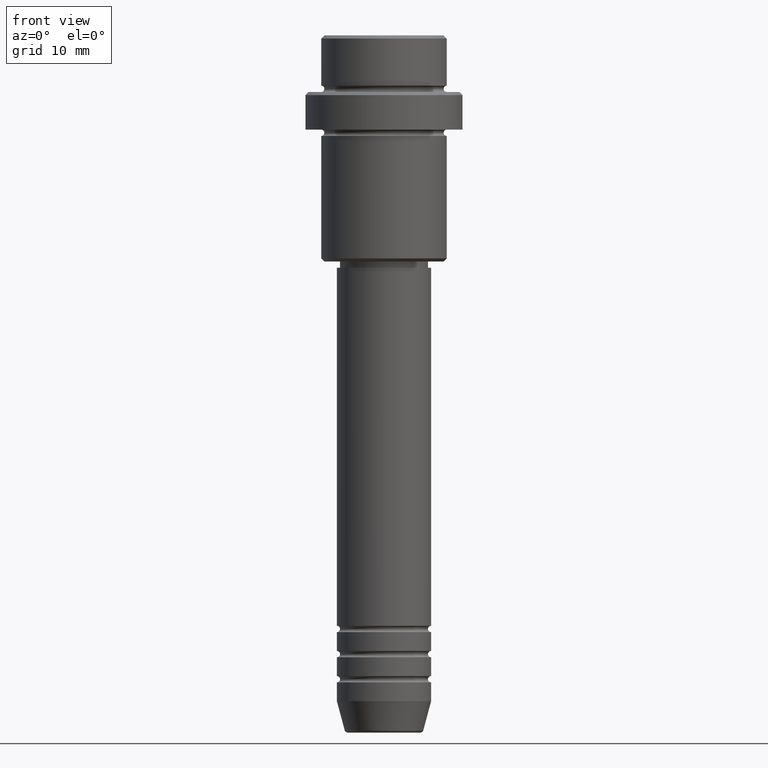
[diagram: clean part render]
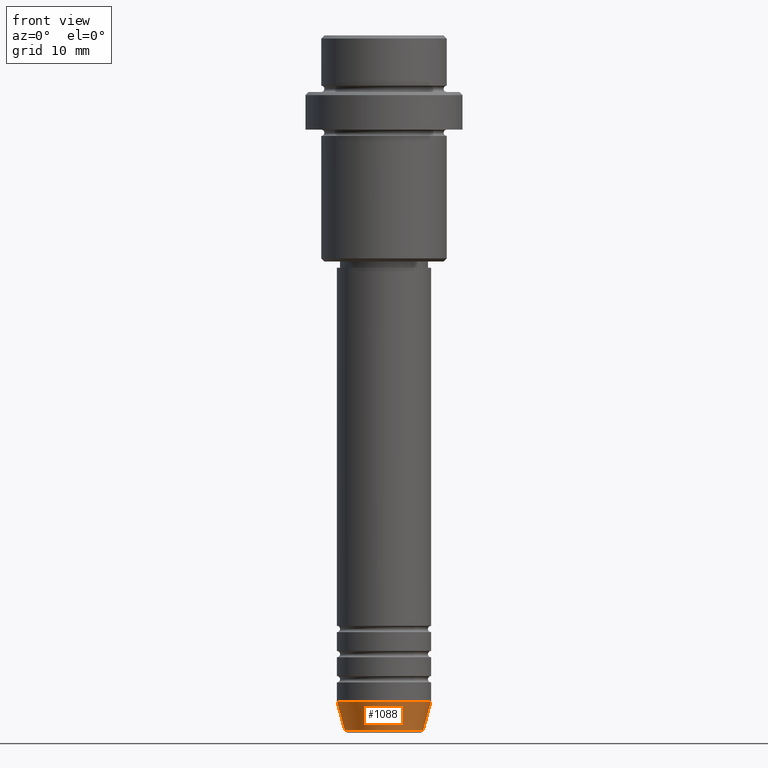
[diagram: same view with one face highlighted and labeled with its STEP entity id]
A machine part, front view. The second image highlights one B-rep face of the part: STEP entity #1088.
In plain terms, the highlighted conical surface has half-angle 15 deg.
Its self-contained STEP definition (entity closure, byte-faithful):
#17 = DIRECTION ( 'NONE',  ( -0.2588190451025213501, 3.169619151431772337E-17, 0.9659258262890680902 ) ) ;
#73 = CARTESIAN_POINT ( 'NONE',  ( 0.000000000000000000, 0.000000000000000000, -106.0000000000000000 ) ) ;
#88 = DIRECTION ( 'NONE',  ( 1.000000000000000000, 0.000000000000000000, 0.000000000000000000 ) ) ;
#167 = ORIENTED_EDGE ( 'NONE', *, *, #240, .T. ) ;
#176 = DIRECTION ( 'NONE',  ( 0.2588190451025213501, 0.000000000000000000, 0.9659258262890680902 ) ) ;
#188 = CARTESIAN_POINT ( 'NONE',  ( 7.500000000000000000, 0.000000000000000000, -106.0000000000000000 ) ) ;
#191 = LINE ( 'NONE', #1190, #1125 ) ;
#240 = EDGE_CURVE ( 'NONE', #836, #995, #191, .T. ) ;
#299 = DIRECTION ( 'NONE',  ( -0.000000000000000000, -0.000000000000000000, 1.000000000000000000 ) ) ;
#338 = VECTOR ( 'NONE', #17, 1000.000000000000000 ) ;
#372 = DIRECTION ( 'NONE',  ( -0.000000000000000000, -0.000000000000000000, 1.000000000000000000 ) ) ;
#443 = ORIENTED_EDGE ( 'NONE', *, *, #1236, .F. ) ;
#449 = AXIS2_PLACEMENT_3D ( 'NONE', #925, #372, #1266 ) ;
#470 = EDGE_LOOP ( 'NONE', ( #443, #1092, #167, #1250 ) ) ;
#484 = DIRECTION ( 'NONE',  ( 1.000000000000000000, 0.000000000000000000, 0.000000000000000000 ) ) ;
#537 = EDGE_CURVE ( 'NONE', #928, #995, #749, .T. ) ;
#596 = CARTESIAN_POINT ( 'NONE',  ( -7.500000000000000000, 9.184850993605147944E-16, -106.0000000000000000 ) ) ;
#749 = CIRCLE ( 'NONE', #449, 7.500000000000000000 ) ;
#836 = VERTEX_POINT ( 'NONE', #1217 ) ;
#875 = VERTEX_POINT ( 'NONE', #924 ) ;
#900 = DIRECTION ( 'NONE',  ( -0.000000000000000000, -0.000000000000000000, 1.000000000000000000 ) ) ;
#905 = CARTESIAN_POINT ( 'NONE',  ( 0.000000000000000000, 0.000000000000000000, -110.6294095225512564 ) ) ;
#916 = AXIS2_PLACEMENT_3D ( 'NONE', #905, #900, #484 ) ;
#924 = CARTESIAN_POINT ( 'NONE',  ( -6.259553456999438659, 8.425296549405629486E-16, -110.6294095225512564 ) ) ;
#925 = CARTESIAN_POINT ( 'NONE',  ( 0.000000000000000000, 0.000000000000000000, -106.0000000000000000 ) ) ;
#928 = VERTEX_POINT ( 'NONE', #596 ) ;
#933 = EDGE_CURVE ( 'NONE', #875, #836, #1340, .T. ) ;
#995 = VERTEX_POINT ( 'NONE', #188 ) ;
#998 = CARTESIAN_POINT ( 'NONE',  ( -7.500000000000000000, 9.184850993605147944E-16, -106.0000000000000000 ) ) ;
#1068 = FACE_OUTER_BOUND ( 'NONE', #470, .T. ) ;
#1088 = ADVANCED_FACE ( 'NONE', ( #1068 ), #1251, .T. ) ;
#1092 = ORIENTED_EDGE ( 'NONE', *, *, #933, .T. ) ;
#1096 = LINE ( 'NONE', #998, #338 ) ;
#1103 = AXIS2_PLACEMENT_3D ( 'NONE', #73, #299, #88 ) ;
#1125 = VECTOR ( 'NONE', #176, 1000.000000000000000 ) ;
#1190 = CARTESIAN_POINT ( 'NONE',  ( 7.500000000000000000, 0.000000000000000000, -106.0000000000000000 ) ) ;
#1217 = CARTESIAN_POINT ( 'NONE',  ( 6.259553456999438659, 0.000000000000000000, -110.6294095225512564 ) ) ;
#1236 = EDGE_CURVE ( 'NONE', #875, #928, #1096, .T. ) ;
#1250 = ORIENTED_EDGE ( 'NONE', *, *, #537, .F. ) ;
#1251 = CONICAL_SURFACE ( 'NONE', #1103, 7.500000000000000000, 0.2617993877991500740 ) ;
#1266 = DIRECTION ( 'NONE',  ( 1.000000000000000000, 0.000000000000000000, 0.000000000000000000 ) ) ;
#1340 = CIRCLE ( 'NONE', #916, 6.259553456999438659 ) ;